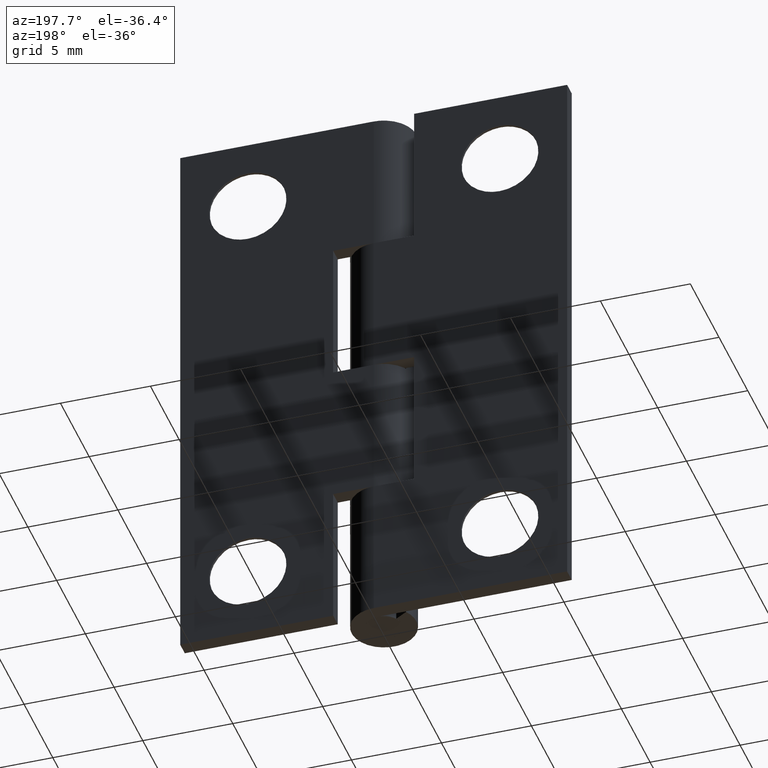
[diagram: clean part render]
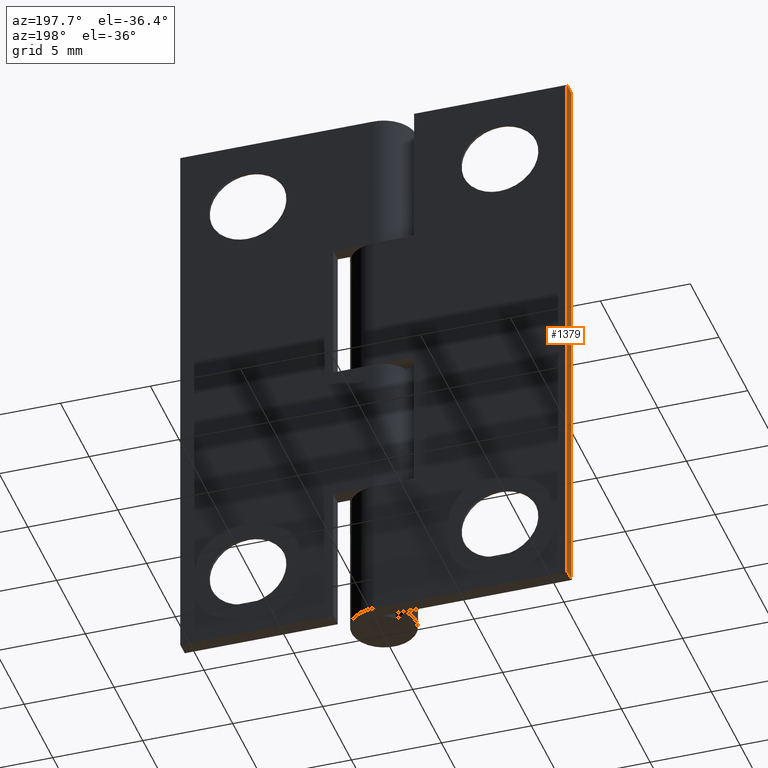
[diagram: same view with one face highlighted and labeled with its STEP entity id]
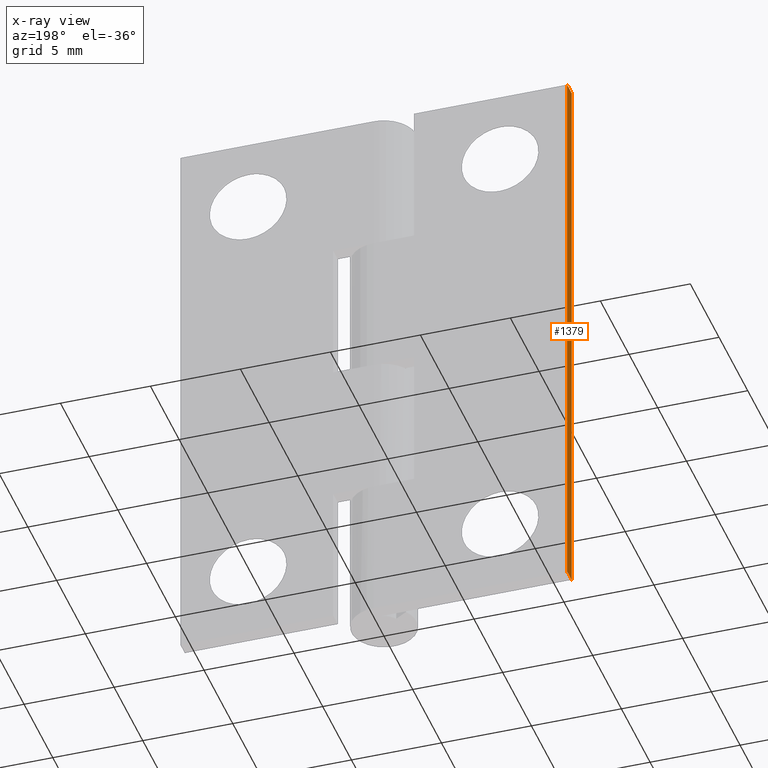
[diagram: x-ray of the same camera — body ghosted, the highlighted face saturated]
A machine part, auxiliary view. The second image highlights one B-rep face of the part: STEP entity #1379.
The next image is the same camera in x-ray: the body ghosted, the highlighted face saturated — about 0% of this face is hidden behind the body in this view.
In plain terms, the highlighted face is a freeform B-spline surface patch.
Its self-contained STEP definition (entity closure, byte-faithful):
#1259=CARTESIAN_POINT('',(-10.750000000000000,0.999999999999986,32.0));
#1260=VERTEX_POINT('',#1259);
#1267=CARTESIAN_POINT('',(-10.750000000000000,1.799999000000000,32.0));
#1268=VERTEX_POINT('',#1267);
#1274=CARTESIAN_POINT('',(-10.750000000000000,1.799999000000000,32.0));
#1275=CARTESIAN_POINT('',(-10.750000000000000,0.999999999999986,32.0));
#1276=QUASI_UNIFORM_CURVE('',1,(#1274,#1275),.UNSPECIFIED.,.F.,.U.);
#1277=EDGE_CURVE('',#1268,#1260,#1276,.T.);
#1287=CARTESIAN_POINT('',(-10.750000000000000,1.799999000000000,0.0));
#1288=VERTEX_POINT('',#1287);
#1289=CARTESIAN_POINT('',(-10.750000000000000,0.999999999999986,0.0));
#1290=VERTEX_POINT('',#1289);
#1291=CARTESIAN_POINT('',(-10.750000000000000,1.799999000000000,0.0));
#1292=CARTESIAN_POINT('',(-10.750000000000000,0.999999999999986,0.0));
#1293=QUASI_UNIFORM_CURVE('',1,(#1291,#1292),.UNSPECIFIED.,.F.,.U.);
#1294=EDGE_CURVE('',#1288,#1290,#1293,.T.);
#1360=CARTESIAN_POINT('',(-10.750000000000000,0.960040051500538,-1.598399937977790));
#1361=CARTESIAN_POINT('',(-10.750000000000000,0.960040051500538,33.598400796284679));
#1362=CARTESIAN_POINT('',(-10.750000000000000,1.839958969957093,-1.598399937977790));
#1363=CARTESIAN_POINT('',(-10.750000000000000,1.839958969957093,33.598400796284679));
#1364=B_SPLINE_SURFACE_WITH_KNOTS('',1,1,((#1360,#1362),(#1361,#1363)),.UNSPECIFIED.,.F.,.F.,.U.,(2,2),(2,2),(0.0,35.196800734262467),(0.041708334948495,0.958291687403247),.UNSPECIFIED.);
#1365=ORIENTED_EDGE('',*,*,#1277,.F.);
#1366=CARTESIAN_POINT('',(-10.750000000000000,1.799999000000000,0.0));
#1367=CARTESIAN_POINT('',(-10.750000000000000,1.799999000000000,32.0));
#1368=QUASI_UNIFORM_CURVE('',1,(#1366,#1367),.UNSPECIFIED.,.F.,.U.);
#1369=EDGE_CURVE('',#1288,#1268,#1368,.T.);
#1370=ORIENTED_EDGE('',*,*,#1369,.F.);
#1371=ORIENTED_EDGE('',*,*,#1294,.T.);
#1372=CARTESIAN_POINT('',(-10.750000000000000,0.999999999999986,0.0));
#1373=CARTESIAN_POINT('',(-10.750000000000000,0.999999999999986,32.0));
#1374=QUASI_UNIFORM_CURVE('',1,(#1372,#1373),.UNSPECIFIED.,.F.,.U.);
#1375=EDGE_CURVE('',#1290,#1260,#1374,.T.);
#1376=ORIENTED_EDGE('',*,*,#1375,.T.);
#1377=EDGE_LOOP('',(#1365,#1370,#1371,#1376));
#1378=FACE_OUTER_BOUND('',#1377,.T.);
#1379=ADVANCED_FACE('',(#1378),#1364,.T.);